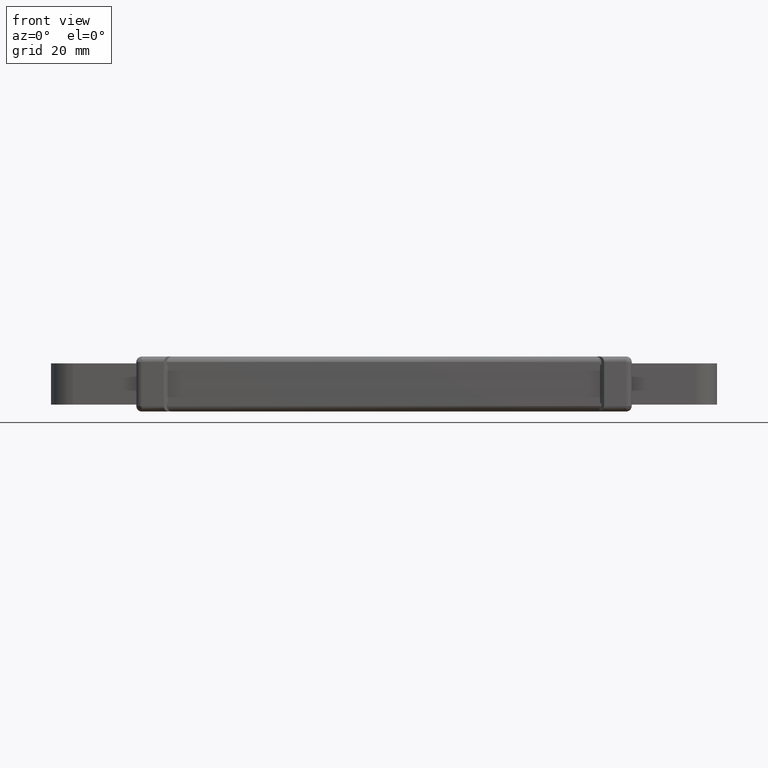
[diagram: clean part render]
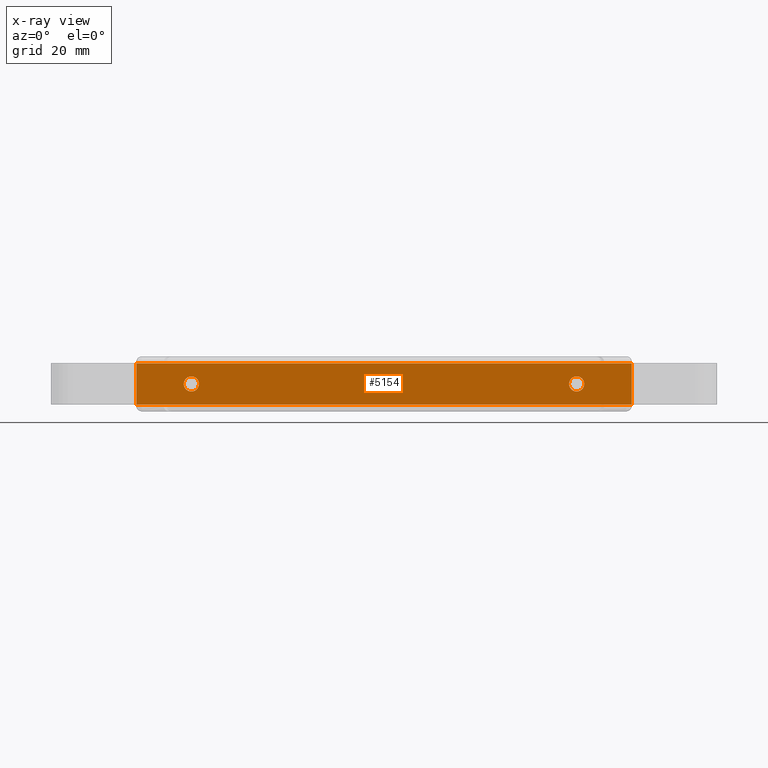
[diagram: x-ray — body ghosted, one internal face saturated and labeled with its STEP entity id]
A machine part, front view, then the same camera in x-ray: the body is ghosted and one INTERNAL B-rep face — a face not visible from any outside direction — is saturated and labeled: STEP entity #5154.
In plain terms, the highlighted face is a freeform B-spline surface patch.
Its self-contained STEP definition (entity closure, byte-faithful):
#2376=CARTESIAN_POINT('',(69.818768482246185,2.744021708546171,-3.000000000000226));
#2377=VERTEX_POINT('',#2376);
#2383=CARTESIAN_POINT('',(67.250000000000000,0.0,-3.000000000000225));
#2384=VERTEX_POINT('',#2383);
#2385=CARTESIAN_POINT('',(67.250000000000000,0.0,-3.000000000000225));
#2386=CARTESIAN_POINT('',(67.250000000000000,2.574364955471446,-3.000000000000226));
#2387=CARTESIAN_POINT('',(69.818768482246185,2.744021708546172,-3.000000000000226));
#2395=(BOUNDED_CURVE()B_SPLINE_CURVE(2,(#2385,#2386,#2387),.UNSPECIFIED.,.F.,.U.)B_SPLINE_CURVE_WITH_KNOTS((3,3),(0.500000000000000,0.738494526944639),.UNSPECIFIED.)CURVE()GEOMETRIC_REPRESENTATION_ITEM()RATIONAL_B_SPLINE_CURVE((1.0,0.720586281335172,0.974281703908829))REPRESENTATION_ITEM(''));
#2396=EDGE_CURVE('',#2384,#2377,#2395,.T.);
#2398=CARTESIAN_POINT('',(70.023997974594963,-2.749895288409240,-3.000000000000225));
#2399=VERTEX_POINT('',#2398);
#2400=CARTESIAN_POINT('',(70.023997974594963,-2.749895288409240,-3.000000000000225));
#2401=CARTESIAN_POINT('',(70.011999216731482,-2.750000000000000,-3.000000000000225));
#2402=CARTESIAN_POINT('',(70.0,-2.750000000000000,-3.000000000000225));
#2403=CARTESIAN_POINT('',(67.250000000000000,-2.750000000000000,-3.000000000000225));
#2404=CARTESIAN_POINT('',(67.250000000000000,0.0,-3.000000000000225));
#2412=(BOUNDED_CURVE()B_SPLINE_CURVE(2,(#2400,#2401,#2402,#2403,#2404),.UNSPECIFIED.,.F.,.U.)B_SPLINE_CURVE_WITH_KNOTS((3,2,3),(0.248460105412071,0.250000000000000,0.500000000000000),.UNSPECIFIED.)CURVE()GEOMETRIC_REPRESENTATION_ITEM()RATIONAL_B_SPLINE_CURVE((0.996414027515027,0.998195901270032,1.0,0.707106781186548,1.0))REPRESENTATION_ITEM(''));
#2413=EDGE_CURVE('',#2399,#2384,#2412,.T.);
#2493=CARTESIAN_POINT('',(72.750000000000014,0.0,-3.000000000000225));
#2494=VERTEX_POINT('',#2493);
#2495=CARTESIAN_POINT('',(72.750000000000014,0.0,-3.000000000000225));
#2496=CARTESIAN_POINT('',(72.750000000000014,-2.726105825221335,-3.000000000000226));
#2497=CARTESIAN_POINT('',(70.023997974594963,-2.749895288409241,-3.000000000000225));
#2505=(BOUNDED_CURVE()B_SPLINE_CURVE(2,(#2495,#2496,#2497),.UNSPECIFIED.,.F.,.U.)B_SPLINE_CURVE_WITH_KNOTS((3,3),(0.0,0.248460105412071),.UNSPECIFIED.)CURVE()GEOMETRIC_REPRESENTATION_ITEM()RATIONAL_B_SPLINE_CURVE((1.0,0.708910879916516,0.996414027515027))REPRESENTATION_ITEM(''));
#2506=EDGE_CURVE('',#2494,#2399,#2505,.T.);
#2508=CARTESIAN_POINT('',(69.818768482246185,2.744021708546171,-3.000000000000226));
#2509=CARTESIAN_POINT('',(69.909285637537465,2.750000000000000,-3.000000000000226));
#2510=CARTESIAN_POINT('',(70.0,2.750000000000000,-3.000000000000225));
#2511=CARTESIAN_POINT('',(72.750000000000014,2.750000000000000,-3.000000000000225));
#2512=CARTESIAN_POINT('',(72.750000000000014,0.0,-3.000000000000225));
#2520=(BOUNDED_CURVE()B_SPLINE_CURVE(2,(#2508,#2509,#2510,#2511,#2512),.UNSPECIFIED.,.F.,.U.)B_SPLINE_CURVE_WITH_KNOTS((3,2,3),(0.738494526944640,0.750000000000000,1.0),.UNSPECIFIED.)CURVE()GEOMETRIC_REPRESENTATION_ITEM()RATIONAL_B_SPLINE_CURVE((0.974281703908831,0.986520499851376,1.0,0.707106781186548,1.0))REPRESENTATION_ITEM(''));
#2521=EDGE_CURVE('',#2377,#2494,#2520,.T.);
#2562=CARTESIAN_POINT('',(-70.181231517753815,2.744021708546171,-3.000000000000226));
#2563=VERTEX_POINT('',#2562);
#2569=CARTESIAN_POINT('',(-72.750000000000014,0.0,-3.000000000000225));
#2570=VERTEX_POINT('',#2569);
#2571=CARTESIAN_POINT('',(-72.750000000000014,0.0,-3.000000000000225));
#2572=CARTESIAN_POINT('',(-72.750000000000014,2.574364955471479,-3.000000000000226));
#2573=CARTESIAN_POINT('',(-70.181231517753815,2.744021708546172,-3.000000000000226));
#2581=(BOUNDED_CURVE()B_SPLINE_CURVE(2,(#2571,#2572,#2573),.UNSPECIFIED.,.F.,.U.)B_SPLINE_CURVE_WITH_KNOTS((3,3),(0.500000000000000,0.738494526944641),.UNSPECIFIED.)CURVE()GEOMETRIC_REPRESENTATION_ITEM()RATIONAL_B_SPLINE_CURVE((1.0,0.720586281335169,0.974281703908834))REPRESENTATION_ITEM(''));
#2582=EDGE_CURVE('',#2570,#2563,#2581,.T.);
#2584=CARTESIAN_POINT('',(-69.976002025405037,-2.749895288409240,-3.000000000000225));
#2585=VERTEX_POINT('',#2584);
#2586=CARTESIAN_POINT('',(-69.976002025405037,-2.749895288409241,-3.000000000000225));
#2587=CARTESIAN_POINT('',(-69.988000783268518,-2.750000000000000,-3.000000000000225));
#2588=CARTESIAN_POINT('',(-70.0,-2.750000000000000,-3.000000000000225));
#2589=CARTESIAN_POINT('',(-72.750000000000014,-2.750000000000000,-3.000000000000225));
#2590=CARTESIAN_POINT('',(-72.750000000000014,0.0,-3.000000000000225));
#2598=(BOUNDED_CURVE()B_SPLINE_CURVE(2,(#2586,#2587,#2588,#2589,#2590),.UNSPECIFIED.,.F.,.U.)B_SPLINE_CURVE_WITH_KNOTS((3,2,3),(0.248460105412071,0.250000000000000,0.500000000000000),.UNSPECIFIED.)CURVE()GEOMETRIC_REPRESENTATION_ITEM()RATIONAL_B_SPLINE_CURVE((0.996414027515027,0.998195901270032,1.0,0.707106781186548,1.0))REPRESENTATION_ITEM(''));
#2599=EDGE_CURVE('',#2585,#2570,#2598,.T.);
#2679=CARTESIAN_POINT('',(-67.250000000000000,0.0,-3.000000000000225));
#2680=VERTEX_POINT('',#2679);
#2681=CARTESIAN_POINT('',(-67.250000000000000,0.0,-3.000000000000225));
#2682=CARTESIAN_POINT('',(-67.249999999999972,-2.726105825221334,-3.000000000000225));
#2683=CARTESIAN_POINT('',(-69.976002025405037,-2.749895288409240,-3.000000000000224));
#2691=(BOUNDED_CURVE()B_SPLINE_CURVE(2,(#2681,#2682,#2683),.UNSPECIFIED.,.F.,.U.)B_SPLINE_CURVE_WITH_KNOTS((3,3),(0.0,0.248460105412071),.UNSPECIFIED.)CURVE()GEOMETRIC_REPRESENTATION_ITEM()RATIONAL_B_SPLINE_CURVE((1.0,0.708910879916516,0.996414027515027))REPRESENTATION_ITEM(''));
#2692=EDGE_CURVE('',#2680,#2585,#2691,.T.);
#2694=CARTESIAN_POINT('',(-70.181231517753815,2.744021708546172,-3.000000000000226));
#2695=CARTESIAN_POINT('',(-70.090714362462549,2.750000000000000,-3.000000000000225));
#2696=CARTESIAN_POINT('',(-70.0,2.750000000000000,-3.000000000000225));
#2697=CARTESIAN_POINT('',(-67.250000000000000,2.750000000000000,-3.000000000000225));
#2698=CARTESIAN_POINT('',(-67.250000000000000,0.0,-3.000000000000225));
#2706=(BOUNDED_CURVE()B_SPLINE_CURVE(2,(#2694,#2695,#2696,#2697,#2698),.UNSPECIFIED.,.F.,.U.)B_SPLINE_CURVE_WITH_KNOTS((3,2,3),(0.738494526944641,0.750000000000000,1.0),.UNSPECIFIED.)CURVE()GEOMETRIC_REPRESENTATION_ITEM()RATIONAL_B_SPLINE_CURVE((0.974281703908832,0.986520499851377,1.0,0.707106781186548,1.0))REPRESENTATION_ITEM(''));
#2707=EDGE_CURVE('',#2563,#2680,#2706,.T.);
#4456=CARTESIAN_POINT('',(-90.0,-7.500000000000000,-3.000000000000200));
#4457=VERTEX_POINT('',#4456);
#4472=CARTESIAN_POINT('',(90.0,-7.500000000000000,-3.000000000000200));
#4473=VERTEX_POINT('',#4472);
#4479=CARTESIAN_POINT('',(90.0,-7.500000000000000,-3.000000000000200));
#4480=CARTESIAN_POINT('',(-90.0,-7.500000000000000,-3.000000000000200));
#4481=QUASI_UNIFORM_CURVE('',1,(#4479,#4480),.UNSPECIFIED.,.F.,.U.);
#4482=EDGE_CURVE('',#4473,#4457,#4481,.T.);
#4494=CARTESIAN_POINT('',(-90.0,7.499999999999890,-3.000000000000200));
#4495=VERTEX_POINT('',#4494);
#4501=CARTESIAN_POINT('',(90.0,7.499999999999890,-3.000000000000200));
#4502=VERTEX_POINT('',#4501);
#4503=CARTESIAN_POINT('',(90.0,7.499999999999890,-3.000000000000200));
#4504=CARTESIAN_POINT('',(-90.0,7.499999999999890,-3.000000000000200));
#4505=QUASI_UNIFORM_CURVE('',1,(#4503,#4504),.UNSPECIFIED.,.F.,.U.);
#4506=EDGE_CURVE('',#4502,#4495,#4505,.T.);
#5014=CARTESIAN_POINT('',(-90.0,7.499999999999890,-3.000000000000200));
#5015=CARTESIAN_POINT('',(-90.0,-7.500000000000000,-3.000000000000200));
#5016=QUASI_UNIFORM_CURVE('',1,(#5014,#5015),.UNSPECIFIED.,.F.,.U.);
#5017=EDGE_CURVE('',#4495,#4457,#5016,.T.);
#5036=CARTESIAN_POINT('',(90.0,7.499999999999890,-3.000000000000200));
#5037=CARTESIAN_POINT('',(90.0,-7.500000000000000,-3.000000000000200));
#5038=QUASI_UNIFORM_CURVE('',1,(#5036,#5037),.UNSPECIFIED.,.F.,.U.);
#5039=EDGE_CURVE('',#4502,#4473,#5038,.T.);
#5131=CARTESIAN_POINT('',(98.990999651125065,-8.249249970927085,-3.000000000000200));
#5132=CARTESIAN_POINT('',(-98.991004479101306,-8.249249970927085,-3.000000000000200));
#5133=CARTESIAN_POINT('',(98.990999651125065,8.249250373258329,-3.000000000000200));
#5134=CARTESIAN_POINT('',(-98.991004479101306,8.249250373258329,-3.000000000000200));
#5135=B_SPLINE_SURFACE_WITH_KNOTS('',1,1,((#5131,#5133),(#5132,#5134)),.UNSPECIFIED.,.F.,.F.,.U.,(2,2),(2,2),(0.0,197.982004130226390),(0.0,16.498500344185420),.UNSPECIFIED.);
#5136=ORIENTED_EDGE('',*,*,#5017,.T.);
#5137=ORIENTED_EDGE('',*,*,#4482,.F.);
#5138=ORIENTED_EDGE('',*,*,#5039,.F.);
#5139=ORIENTED_EDGE('',*,*,#4506,.T.);
#5140=EDGE_LOOP('',(#5136,#5137,#5138,#5139));
#5141=FACE_OUTER_BOUND('',#5140,.T.);
#5142=ORIENTED_EDGE('',*,*,#2692,.T.);
#5143=ORIENTED_EDGE('',*,*,#2599,.T.);
#5144=ORIENTED_EDGE('',*,*,#2582,.T.);
#5145=ORIENTED_EDGE('',*,*,#2707,.T.);
#5146=EDGE_LOOP('',(#5142,#5143,#5144,#5145));
#5147=FACE_BOUND('',#5146,.T.);
#5148=ORIENTED_EDGE('',*,*,#2506,.T.);
#5149=ORIENTED_EDGE('',*,*,#2413,.T.);
#5150=ORIENTED_EDGE('',*,*,#2396,.T.);
#5151=ORIENTED_EDGE('',*,*,#2521,.T.);
#5152=EDGE_LOOP('',(#5148,#5149,#5150,#5151));
#5153=FACE_BOUND('',#5152,.T.);
#5154=ADVANCED_FACE('',(#5141,#5147,#5153),#5135,.F.);